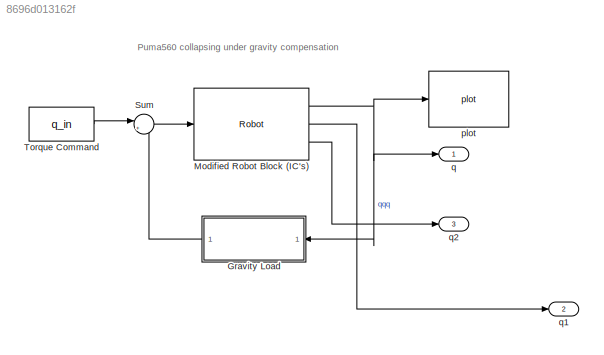
MODEL slx_8696d013162f
KIND model
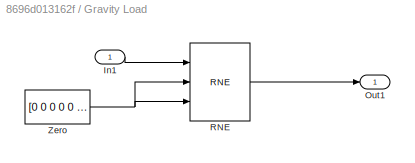
BLOCK [SubSystem] Gravity Load 
  Ports = [1, 1]
  RequestExecContextInheritance = off
BLOCK [Inport] Gravity Load /In1
  IconDisplay = Port number
BLOCK [Outport] Gravity Load /Out1
  IconDisplay = Port number
BLOCK [Reference] Gravity Load /RNE  REF=roblocks/Dynamics/RNE  (lib defined in mdl_2a292b13c81b, mdl_69400f8cfe22, +12 more)
  Ports = [3, 1]
  SourceBlock = roblocks/Dynamics/RNE
  grav = [0 0 9.81]
  robot = myRobot
BLOCK [Constant] Gravity Load /Zero
  Value = [0 0 0 0 0 0]'
BLOCK [Reference] Modified Robot Block (IC's)  REF=roblocks/Dynamics/Robot  (lib defined in mdl_2a292b13c81b, mdl_69400f8cfe22, +12 more)
  Ports = [1, 3]
  SourceBlock = roblocks/Dynamics/Robot
  q0 = q0
  robot = myRobot
BLOCK [Sum] Sum
  IconShape = round
  InputSameDT = off
  Inputs = |++
  OutDataTypeStr = Inherit: Inherit via internal rule
  Ports = [2, 1]
  SaturateOnIntegerOverflow = off
BLOCK [Constant] Torque Command
  Value = q_in
BLOCK [Reference] plot  REF=roblocks/Robot Graphics/plot  (lib defined in mdl_2a292b13c81b, mdl_69400f8cfe22, +12 more)
  Ports = [1]
  SourceBlock = roblocks/Robot Graphics/plot
  fps = 25
  holdplot = on
  robot = p560
BLOCK [Outport] q
  IconDisplay = Port number
BLOCK [Outport] q1
  IconDisplay = Port number
  Port = 2
BLOCK [Outport] q2
  IconDisplay = Port number
  Port = 3
ANNOTATION (root): Puma560 collapsing under gravity compensation
LINE Gravity Load /In1:1 -> Gravity Load /RNE:1
LINE Gravity Load /RNE:1 -> Gravity Load /Out1:1
NET Gravity Load /Zero:1 -> Gravity Load /RNE:2, Gravity Load /RNE:3
LINE Gravity Load :1 -> Sum:2
NET Modified Robot Block (IC's):1 -> Gravity Load :1, plot:1, q:1
LINE Modified Robot Block (IC's):2 -> q1:1
LINE Modified Robot Block (IC's):3 -> q2:1
LINE Sum:1 -> Modified Robot Block (IC's):1
LINE Torque Command:1 -> Sum:1
note: NET lines group one-source signal fan-out (src -> all destinations, sorted); 1:1 wires keep LINE
